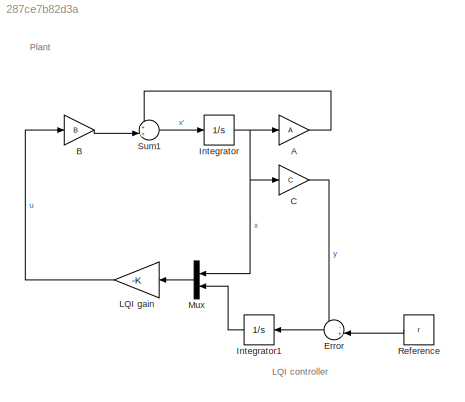
MODEL slx_287ce7b82d3a
KIND model
CONFIG AbsTol = auto
CONFIG EnableMultiTasking = off
CONFIG FixedStep = auto
CONFIG MaxStep = auto
CONFIG MinStep = auto
CONFIG RelTol = 1e-3
CONFIG SampleTimeConstraint = Unconstrained
CONFIG SolverName = VariableStepAuto
CONFIG StartTime = 0.0
CONFIG StopTime = 10
BLOCK [Gain] A
  Gain = A
  Multiplication = Matrix(K*u)
BLOCK [Gain] B
  Gain = B
  Multiplication = Matrix(K*u)
BLOCK [Gain] C
  Gain = C
  Multiplication = Matrix(K*u)
BLOCK [Sum] Error
  Inputs = -+|
BLOCK [Integrator] Integrator
  InitialCondition = h0
BLOCK [Integrator] Integrator1
BLOCK [Gain] LQI gain
  Gain = -K
  Multiplication = Matrix(K*u)
BLOCK [Mux] Mux
  DisplayOption = bar
  Inputs = 2
BLOCK [Constant] Reference
  Value = r
  VectorParams1D = off
BLOCK [Sum] Sum1
  Inputs = ++|
ANNOTATION (root): LQI controller
ANNOTATION (root): Plant
LINE A:1 -> Sum1:1
LINE B:1 -> Sum1:2
LINE C:1 -> Error:1
LINE Error:1 -> Integrator1:1
LINE Integrator1:1 -> Mux:2
NET Integrator:1 -> A:1, C:1, Mux:1
LINE LQI gain:1 -> B:1
LINE Mux:1 -> LQI gain:1
LINE Reference:1 -> Error:2
LINE Sum1:1 -> Integrator:1
note: NET lines group one-source signal fan-out (src -> all destinations, sorted); 1:1 wires keep LINE
